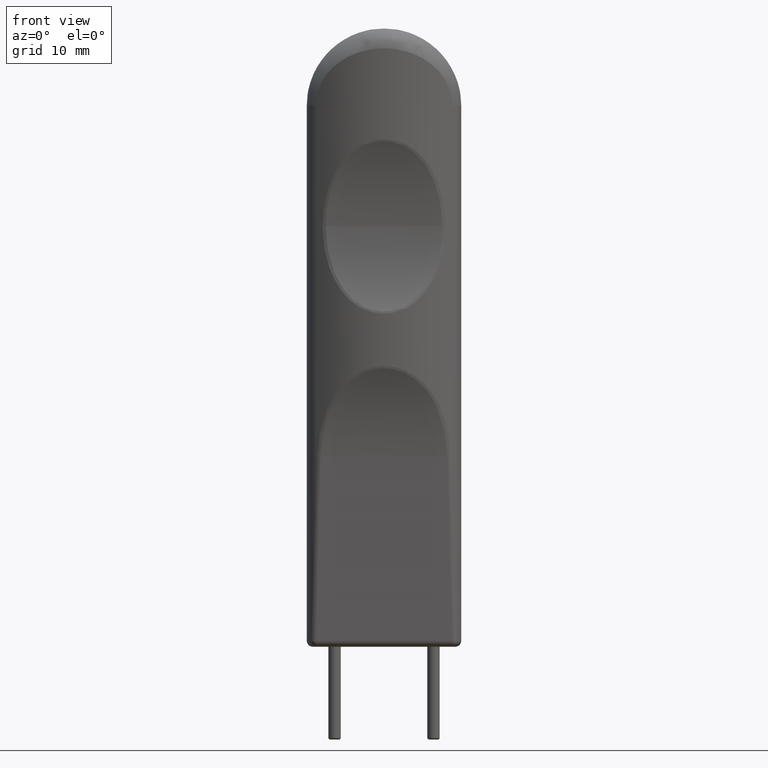
[diagram: clean part render]
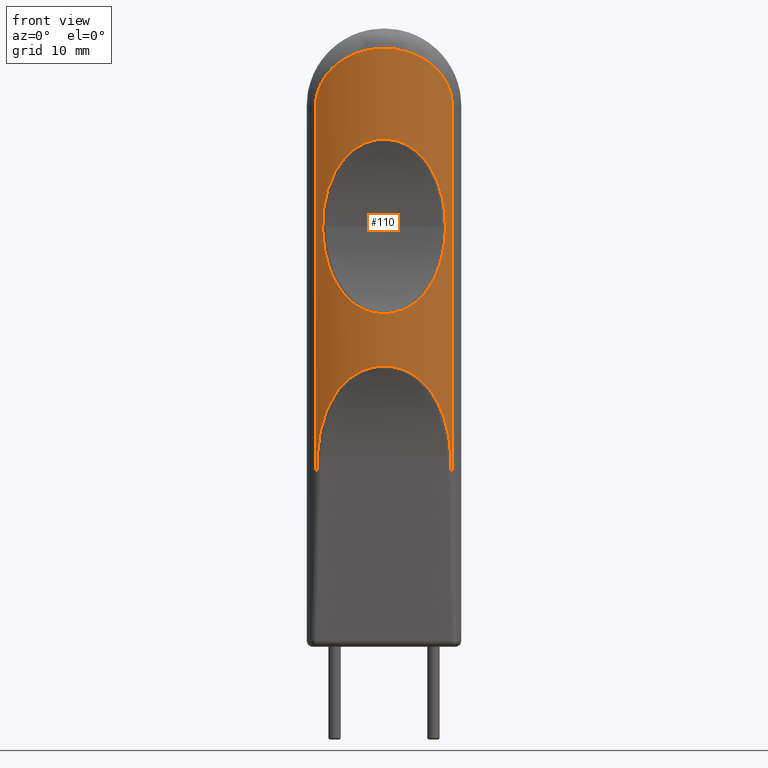
[diagram: same view with one face highlighted and labeled with its STEP entity id]
A machine part, front view. The second image highlights one B-rep face of the part: STEP entity #110.
In plain terms, the highlighted cylindrical surface (partial cylindrical patch) has radius 20 mm, axis along (0, 0, -1).
Its self-contained STEP definition (entity closure, byte-faithful):
#110=ADVANCED_FACE('NONE',(#253,#254),#255,.T.);
#253=FACE_OUTER_BOUND('',#742,.T.);
#254=FACE_BOUND('',#743,.T.);
#255=CYLINDRICAL_SURFACE('',#744,20.0);
#742=EDGE_LOOP('',(#2136,#2137,#2138,#2139,#2140,#2141));
#743=EDGE_LOOP('',(#2142,#2143));
#744=AXIS2_PLACEMENT_3D('',#2144,#2145,#2146);
#2136=ORIENTED_EDGE('',*,*,#2467,.T.);
#2137=ORIENTED_EDGE('',*,*,#2468,.T.);
#2138=ORIENTED_EDGE('',*,*,#2446,.T.);
#2139=ORIENTED_EDGE('',*,*,#2469,.T.);
#2140=ORIENTED_EDGE('',*,*,#2470,.F.);
#2141=ORIENTED_EDGE('',*,*,#2471,.T.);
#2142=ORIENTED_EDGE('',*,*,#2410,.T.);
#2143=ORIENTED_EDGE('',*,*,#2472,.T.);
#2144=CARTESIAN_POINT('',(0.0,13.9910685796332,-100.0));
#2145=DIRECTION('',(0.0,0.0,-1.0));
#2146=DIRECTION('',(1.0,0.0,0.0));
#2410=EDGE_CURVE('NONE',#2591,#2589,#2592,.T.);
#2446=EDGE_CURVE('NONE',#2650,#2648,#2651,.T.);
#2467=EDGE_CURVE('NONE',#2679,#2680,#2681,.T.);
#2468=EDGE_CURVE('NONE',#2680,#2650,#2682,.T.);
#2469=EDGE_CURVE('NONE',#2648,#2683,#2684,.T.);
#2470=EDGE_CURVE('NONE',#2685,#2683,#2686,.T.);
#2471=EDGE_CURVE('NONE',#2685,#2679,#2687,.T.);
#2472=EDGE_CURVE('NONE',#2589,#2591,#2688,.T.);
#2589=VERTEX_POINT('NONE',#3026);
#2591=VERTEX_POINT('NONE',#3028);
#2592=B_SPLINE_CURVE_WITH_KNOTS('',3,(#3029,#3030,#3031,#3032,#3033,#3034,#3035,#3036,#3037,#3038,#3039,#3040,#3041,#3042,#3043,#3044,#3045,#3046,#3047,#3048,#3049,#3050,#3051,#3052,#3053,#3054,#3055,#3056,#3057,#3058,#3059,#3060,#3061,#3062,#3063,#3064,#3065,#3066,#3067,#3068,#3069,#3070,#3071,#3072,#3073,#3074,#3075,#3076,#3077,#3078),.UNSPECIFIED.,.F.,.F.,(4,2,2,2,2,2,2,2,2,2,2,2,2,2,2,2,2,2,2,2,2,2,2,2,4),(0.0742095524781154,0.0754177046779872,0.0766258568778591,0.0778340090777309,0.0790421612776028,0.0796462373775387,0.0802503134774746,0.0814584656773465,0.0826666178772183,0.0838747700770901,0.085082922276962,0.0862910744768338,0.0887073788765776,0.0911236832763212,0.093539987676065,0.0959562920758087,0.0983725964755524,0.100788900875296,0.10320520527504,0.104413357474912,0.105621509674783,0.108037814074527,0.110454118474271,0.111662270674143,0.112870422874015),.UNSPECIFIED.);
#2648=VERTEX_POINT('NONE',#3245);
#2650=VERTEX_POINT('NONE',#3247);
#2651=LINE('',#3248,#3249);
#2679=VERTEX_POINT('NONE',#3465);
#2680=VERTEX_POINT('NONE',#3466);
#2681=B_SPLINE_CURVE_WITH_KNOTS('',3,(#3467,#3468,#3469,#3470,#3471,#3472,#3473,#3474,#3475,#3476,#3477,#3478,#3479,#3480,#3481,#3482,#3483,#3484,#3485,#3486,#3487,#3488,#3489,#3490,#3491,#3492,#3493,#3494,#3495,#3496,#3497,#3498,#3499,#3500,#3501,#3502,#3503,#3504,#3505,#3506,#3507,#3508,#3509,#3510,#3511,#3512,#3513,#3514),.UNSPECIFIED.,.F.,.F.,(4,2,2,2,2,2,2,2,2,2,2,2,2,2,2,2,2,2,2,2,2,2,2,4),(0.0,0.00253154938420707,0.00506309876841414,0.00632887346051767,0.0075946481526212,0.0101261975368283,0.0113919722289318,0.0126577469210353,0.0139235216131389,0.0151892963052424,0.0177208456894495,0.0202523950736566,0.0215181697657601,0.0227839444578636,0.0240497191499672,0.0253154938420707,0.0265812685341742,0.0278470432262778,0.0291128179183813,0.0303785926104848,0.0329101419946919,0.035441691378899,0.037973240763106,0.0405047901473131),.UNSPECIFIED.);
#2682=(B_SPLINE_CURVE(3,(#3516,#3517,#3518,#3519),.UNSPECIFIED.,.F.,.F.)B_SPLINE_CURVE_WITH_KNOTS((4,4),(0.569713571461901,0.58664660615694),.UNSPECIFIED.)RATIONAL_B_SPLINE_CURVE((1.0,0.999976106170732,0.999976106170732,1.0))BOUNDED_CURVE()REPRESENTATION_ITEM('')GEOMETRIC_REPRESENTATION_ITEM()CURVE());
#2683=VERTEX_POINT('NONE',#3526);
#2684=B_SPLINE_CURVE_WITH_KNOTS('',3,(#3527,#3528,#3529,#3530,#3531,#3532,#3533,#3534,#3535,#3536,#3537,#3538,#3539,#3540,#3541,#3542,#3543,#3544,#3545,#3546,#3547,#3548,#3549,#3550,#3551,#3552,#3553,#3554,#3555,#3556,#3557,#3558,#3559,#3560,#3561,#3562,#3563,#3564,#3565,#3566,#3567,#3568,#3569,#3570,#3571,#3572),.UNSPECIFIED.,.F.,.F.,(4,2,2,2,2,2,2,2,2,2,2,2,2,2,2,2,2,2,2,2,2,2,4),(3.49644694633735E-018,0.00204640767227597,0.00306961150841395,0.00409281534455194,0.0061392230168279,0.00818563068910386,0.00920883452524184,0.0102320383613798,0.0122784460336558,0.0143248537059317,0.0153480575420697,0.0163712613782077,0.0184176690504837,0.0194408728866216,0.0204640767227596,0.0225104843950356,0.0235336882311736,0.0245568920673115,0.0266032997395875,0.0286497074118635,0.0296729112480014,0.0306961150841394,0.0327425227564154),.UNSPECIFIED.);
#2685=VERTEX_POINT('NONE',#3573);
#2686=LINE('',#3574,#3575);
#2687=(B_SPLINE_CURVE(3,(#3577,#3578,#3579,#3580),.UNSPECIFIED.,.F.,.F.)B_SPLINE_CURVE_WITH_KNOTS((4,4),(5.69653870102264,5.71347173571769),.UNSPECIFIED.)RATIONAL_B_SPLINE_CURVE((1.0,0.999976106170732,0.999976106170732,1.0))BOUNDED_CURVE()REPRESENTATION_ITEM('')GEOMETRIC_REPRESENTATION_ITEM()CURVE());
#2688=B_SPLINE_CURVE_WITH_KNOTS('',3,(#3587,#3588,#3589,#3590,#3591,#3592,#3593,#3594,#3595,#3596,#3597,#3598,#3599,#3600,#3601,#3602,#3603,#3604,#3605,#3606,#3607,#3608,#3609,#3610,#3611,#3612,#3613,#3614,#3615,#3616,#3617,#3618,#3619,#3620,#3621,#3622,#3623,#3624,#3625,#3626,#3627,#3628,#3629,#3630,#3631,#3632,#3633,#3634,#3635,#3636,#3637,#3638),.UNSPECIFIED.,.F.,.F.,(4,2,2,2,2,2,2,2,2,2,2,2,2,2,2,2,2,2,2,2,2,2,2,2,2,4),(0.0355793620104813,0.0367865554625949,0.0379937489147084,0.039200942366822,0.0404081358189356,0.0416153292710491,0.0428225227231627,0.0440297161752763,0.0452369096273898,0.047651296531617,0.0488584899837305,0.0500656834358441,0.0524800703400712,0.0536872637921848,0.0548944572442983,0.0573088441485255,0.0585160376006391,0.0597232310527526,0.0621376179569798,0.0645520048612069,0.066966391765434,0.0693807786696611,0.0705879721217747,0.0717951655738883,0.0730023590260018,0.0742095524781154),.UNSPECIFIED.);
#3026=CARTESIAN_POINT('',(-3.00940072052525,-5.78122282281435,-18.4819445140793));
#3028=CARTESIAN_POINT('',(3.0206305165737,-5.77951035175733,-45.5133962950282));
#3029=CARTESIAN_POINT('',(3.0206305165737,-5.77951035175733,-45.5133962950282));
#3030=CARTESIAN_POINT('',(2.6514223651464,-5.83591949450622,-45.6669006682085));
#3031=CARTESIAN_POINT('',(2.27044046763357,-5.88357926424809,-45.7937271480114));
#3032=CARTESIAN_POINT('',(1.48266173185064,-5.95782214201518,-45.9895796548694));
#3033=CARTESIAN_POINT('',(1.07856860864782,-5.98394613076567,-46.0574268649568));
#3034=CARTESIAN_POINT('',(0.267799765585374,-6.01125144104851,-46.1282953214143));
#3035=CARTESIAN_POINT('',(-0.14444436885842,-6.01249009054403,-46.1314833005309));
#3036=CARTESIAN_POINT('',(-0.95215959105215,-5.99033817164648,-46.0740357660593));
#3037=CARTESIAN_POINT('',(-1.34981658532027,-5.96720320173607,-46.0140476282202));
#3038=CARTESIAN_POINT('',(-1.93739732746366,-5.91584343413196,-45.878915881664));
#3039=CARTESIAN_POINT('',(-2.13176842358601,-5.89594422647102,-45.8263191549241));
#3040=CARTESIAN_POINT('',(-2.51754260946271,-5.85079862513085,-45.7059994256494));
#3041=CARTESIAN_POINT('',(-2.70955660951788,-5.82544410089071,-45.6379792238919));
#3042=CARTESIAN_POINT('',(-3.27176024100349,-5.74314212856516,-45.4149443815874));
#3043=CARTESIAN_POINT('',(-3.63089903101817,-5.67973543122766,-45.2404089054285));
#3044=CARTESIAN_POINT('',(-4.32099852104112,-5.53975142333413,-44.8440690596471));
#3045=CARTESIAN_POINT('',(-4.65271627833116,-5.46295994382735,-44.6216275748313));
#3046=CARTESIAN_POINT('',(-5.28639941399934,-5.3004055940512,-44.1339749895054));
#3047=CARTESIAN_POINT('',(-5.58348286267159,-5.21597451800107,-43.8727423809297));
#3048=CARTESIAN_POINT('',(-6.1435258171929,-5.04423745850582,-43.3194495017022));
#3049=CARTESIAN_POINT('',(-6.40645445530205,-4.95692010922105,-43.0273639536328));
#3050=CARTESIAN_POINT('',(-6.90164599636287,-4.78221607121297,-42.4147411071729));
#3051=CARTESIAN_POINT('',(-7.13452637572549,-4.69457102292032,-42.0932082407724));
#3052=CARTESIAN_POINT('',(-7.78641092802237,-4.43690419844881,-41.0945105727102));
#3053=CARTESIAN_POINT('',(-8.1519605668197,-4.27539623736275,-40.3959887754235));
#3054=CARTESIAN_POINT('',(-8.77495862145704,-3.9844230460568,-38.9444943402188));
#3055=CARTESIAN_POINT('',(-9.03244204097969,-3.8546748933661,-38.1900156159223));
#3056=CARTESIAN_POINT('',(-9.45055466277697,-3.63682369067577,-36.6361884156785));
#3057=CARTESIAN_POINT('',(-9.6073952544605,-3.55072172615524,-35.8518571058929));
#3058=CARTESIAN_POINT('',(-9.83158734201531,-3.42605922732762,-34.2699549107825));
#3059=CARTESIAN_POINT('',(-9.8988247980423,-3.38748259778235,-33.4723719484805));
#3060=CARTESIAN_POINT('',(-9.94711656029954,-3.35988659707691,-31.8642196782019));
#3061=CARTESIAN_POINT('',(-9.92741417806143,-3.37129921039782,-31.0486256142584));
#3062=CARTESIAN_POINT('',(-9.79994669234528,-3.44356397646825,-29.4447331391734));
#3063=CARTESIAN_POINT('',(-9.69283504106702,-3.50405593623536,-28.6530246172482));
#3064=CARTESIAN_POINT('',(-9.38618023149828,-3.67047307507274,-27.0907983045216));
#3065=CARTESIAN_POINT('',(-9.18678181500359,-3.77642540982285,-26.320256809892));
#3066=CARTESIAN_POINT('',(-8.80528336522037,-3.96685962920106,-25.1824680604611));
#3067=CARTESIAN_POINT('',(-8.66414352123394,-4.03562130952508,-24.8063749325485));
#3068=CARTESIAN_POINT('',(-8.35629274034896,-4.18037338169758,-24.073394763478));
#3069=CARTESIAN_POINT('',(-8.18909742734606,-4.25661566916622,-23.71492793552));
#3070=CARTESIAN_POINT('',(-7.64413793088743,-4.49471903592062,-22.6650078878705));
#3071=CARTESIAN_POINT('',(-7.22265071774676,-4.66657098269612,-21.9971218539684));
#3072=CARTESIAN_POINT('',(-6.23643849256167,-5.01895594315107,-20.7496534282494));
#3073=CARTESIAN_POINT('',(-5.68566044638001,-5.19449532199707,-20.1872130927118));
#3074=CARTESIAN_POINT('',(-4.75355488922348,-5.43846731675162,-19.4504801593069));
#3075=CARTESIAN_POINT('',(-4.42228941632047,-5.51704892017024,-19.2214016644778));
#3076=CARTESIAN_POINT('',(-3.73478721019159,-5.66025851454613,-18.8138494622802));
#3077=CARTESIAN_POINT('',(-3.37870191216404,-5.7250140987172,-18.634844348692));
#3078=CARTESIAN_POINT('',(-3.00940072052525,-5.78122282281435,-18.4819445140793));
#3245=CARTESIAN_POINT('',(11.0714285714286,-2.66496544373966,-12.5));
#3247=CARTESIAN_POINT('',(11.0714285714286,-2.66496544373966,-78.097604201815));
#3248=CARTESIAN_POINT('',(11.0714285714286,-2.66496544373966,-100.0));
#3249=VECTOR('',#4134,1000.0);
#3465=CARTESIAN_POINT('',(-10.7878176427133,-2.85004155323998,-69.1908077830603));
#3466=CARTESIAN_POINT('',(10.7878176427134,-2.85004155323992,-69.1908077830603));
#3467=CARTESIAN_POINT('',(-10.7878176427133,-2.85004155323998,-69.1908077830603));
#3468=CARTESIAN_POINT('',(-10.7601529190188,-2.86776259371754,-68.3379818819305));
#3469=CARTESIAN_POINT('',(-10.6893137459573,-2.91327810495902,-67.4949563289386));
#3470=CARTESIAN_POINT('',(-10.4592580269641,-3.05657896241154,-65.828511463214));
#3471=CARTESIAN_POINT('',(-10.300108533416,-3.15438684614668,-65.0050833925454));
#3472=CARTESIAN_POINT('',(-9.98585864424489,-3.33802102503294,-63.7859344785368));
#3473=CARTESIAN_POINT('',(-9.86803784615202,-3.40560680349895,-63.3810502682111));
#3474=CARTESIAN_POINT('',(-9.606078157588,-3.55161501636988,-62.5826781329093));
#3475=CARTESIAN_POINT('',(-9.46256472420144,-3.62969477177839,-62.1908302273089));
#3476=CARTESIAN_POINT('',(-8.99176948453152,-3.87716609874661,-61.0381254146058));
#3477=CARTESIAN_POINT('',(-8.62479902730671,-4.05990699043876,-60.2998582300283));
#3478=CARTESIAN_POINT('',(-7.9758910534793,-4.35126990885348,-59.2447239136858));
#3479=CARTESIAN_POINT('',(-7.74192711948415,-4.45169440916977,-58.9003197980918));
#3480=CARTESIAN_POINT('',(-7.24109622942776,-4.65402373927828,-58.2382225476885));
#3481=CARTESIAN_POINT('',(-6.97569491684366,-4.75537308397643,-57.9221677992938));
#3482=CARTESIAN_POINT('',(-6.41220429644205,-4.95551503538002,-57.3217671697702));
#3483=CARTESIAN_POINT('',(-6.11413372991136,-5.05431604987067,-57.0374054463262));
#3484=CARTESIAN_POINT('',(-5.48129415025802,-5.24599776093259,-56.503254175885));
#3485=CARTESIAN_POINT('',(-5.14392292609231,-5.33949628742161,-56.2518837011513));
#3486=CARTESIAN_POINT('',(-4.09102984177232,-5.59939337075732,-55.570903003941));
#3487=CARTESIAN_POINT('',(-3.33692271374366,-5.74575774905101,-55.2117716912473));
#3488=CARTESIAN_POINT('',(-1.70400028715649,-5.95319750732802,-54.7119317454602));
#3489=CARTESIAN_POINT('',(-0.869038828308007,-6.00822079373482,-54.5848316356917));
#3490=CARTESIAN_POINT('',(0.409752677882061,-6.00927651049393,-54.5823601510578));
#3491=CARTESIAN_POINT('',(0.841525193460625,-5.9956483182387,-54.6141531231645));
#3492=CARTESIAN_POINT('',(1.6813176448116,-5.94257604407152,-54.7392807495542));
#3493=CARTESIAN_POINT('',(2.09356734951945,-5.90323985001975,-54.8323730381639));
#3494=CARTESIAN_POINT('',(2.90334088187959,-5.80128206056972,-55.0779206279588));
#3495=CARTESIAN_POINT('',(3.30275721427344,-5.73814686851298,-55.2316966908717));
#3496=CARTESIAN_POINT('',(4.06447639558379,-5.59541091632388,-55.5877997016154));
#3497=CARTESIAN_POINT('',(4.4295932458696,-5.51557551053026,-55.7906741298398));
#3498=CARTESIAN_POINT('',(5.13104029784907,-5.34291407904351,-56.2427817217557));
#3499=CARTESIAN_POINT('',(5.46927145359467,-5.24944581559629,-56.4938488194055));
#3500=CARTESIAN_POINT('',(6.10515511193416,-5.05722282630037,-57.0291086756842));
#3501=CARTESIAN_POINT('',(6.40384477127867,-4.95834219580838,-57.3135251575799));
#3502=CARTESIAN_POINT('',(6.96742981632253,-4.75844656998265,-57.9127155739338));
#3503=CARTESIAN_POINT('',(7.23230217113398,-4.65742220734907,-58.2275076106288));
#3504=CARTESIAN_POINT('',(7.73138471570099,-4.45610176447586,-58.8855066168521));
#3505=CARTESIAN_POINT('',(7.96662339562133,-4.35531797252942,-59.2305295776325));
#3506=CARTESIAN_POINT('',(8.62007622220846,-4.06224793892945,-60.2904747706543));
#3507=CARTESIAN_POINT('',(8.98766461216454,-3.87922681091786,-61.0295494164014));
#3508=CARTESIAN_POINT('',(9.61508023980182,-3.54962138708356,-62.562797820301));
#3509=CARTESIAN_POINT('',(9.87521666951243,-3.40260907984779,-63.35938313503));
#3510=CARTESIAN_POINT('',(10.2979907276606,-3.15568953275527,-64.9942278117292));
#3511=CARTESIAN_POINT('',(10.4580874710813,-3.05730202236766,-65.8212760905173));
#3512=CARTESIAN_POINT('',(10.6892018658525,-2.9133538360251,-67.4929090614589));
#3513=CARTESIAN_POINT('',(10.760137410733,-2.86777252777519,-68.3375038049389));
#3514=CARTESIAN_POINT('',(10.7878176427134,-2.85004155323992,-69.1908077830603));
#3516=CARTESIAN_POINT('',(10.7878176427134,-2.85004155323992,-69.1908077830603));
#3517=CARTESIAN_POINT('',(10.8828758124371,-2.78915066229873,-72.1211847551834));
#3518=CARTESIAN_POINT('',(10.9774150475798,-2.72745715170444,-75.0901878356209));
#3519=CARTESIAN_POINT('',(11.0714285714286,-2.66496544373966,-78.097604201815));
#3526=CARTESIAN_POINT('',(-11.0714285714286,-2.66496544373966,-12.5));
#3527=CARTESIAN_POINT('',(11.0714285714286,-2.66496544373966,-12.5));
#3528=CARTESIAN_POINT('',(11.0714285714286,-2.66496544373967,-11.8051826068772));
#3529=CARTESIAN_POINT('',(10.9800309586937,-2.72663318355155,-11.1317201775837));
#3530=CARTESIAN_POINT('',(10.7194187735874,-2.89397566610766,-10.1494912345771));
#3531=CARTESIAN_POINT('',(10.6108359074016,-2.96274668705124,-9.82524777048519));
#3532=CARTESIAN_POINT('',(10.3600066610064,-3.11717366597958,-9.20366468646456));
#3533=CARTESIAN_POINT('',(10.2173801899931,-3.20308190051848,-8.90407788713572));
#3534=CARTESIAN_POINT('',(9.74159628506634,-3.4799352994414,-8.03500851067933));
#3535=CARTESIAN_POINT('',(9.357273389845,-3.69138467995878,-7.49231851499856));
#3536=CARTESIAN_POINT('',(8.50330111213605,-4.11753679919988,-6.51343234098071));
#3537=CARTESIAN_POINT('',(8.03086657843206,-4.33422419090656,-6.07099898398116));
#3538=CARTESIAN_POINT('',(7.25542021318323,-4.6485846041515,-5.46908089958675));
#3539=CARTESIAN_POINT('',(6.98482979757677,-4.75189359898118,-5.27844488193033));
#3540=CARTESIAN_POINT('',(6.43075075898877,-4.94915114469552,-4.92399913264221));
#3541=CARTESIAN_POINT('',(6.14624004891271,-5.04355623608555,-4.75929343145252));
#3542=CARTESIAN_POINT('',(5.27045441310733,-5.31165518504565,-4.30097871095059));
#3543=CARTESIAN_POINT('',(4.65712351444689,-5.47028779897741,-4.04280808027428));
#3544=CARTESIAN_POINT('',(3.36753930047214,-5.73436856593794,-3.62160027997032));
#3545=CARTESIAN_POINT('',(2.70994053444678,-5.83589476737445,-3.46478411684757));
#3546=CARTESIAN_POINT('',(1.70646001753712,-5.93883502084873,-3.3066865269553));
#3547=CARTESIAN_POINT('',(1.36900445886369,-5.96493462604659,-3.26690217172474));
#3548=CARTESIAN_POINT('',(0.688035299807705,-6.0000005408443,-3.21353208575617));
#3549=CARTESIAN_POINT('',(0.343193365098505,-6.00896186324154,-3.19995380539221));
#3550=CARTESIAN_POINT('',(-0.691695328191619,-6.00887029977382,-3.20009274557156));
#3551=CARTESIAN_POINT('',(-1.37146809206934,-5.97321979661529,-3.25387697912059));
#3552=CARTESIAN_POINT('',(-2.37658816321067,-5.87008099628209,-3.41228063903126));
#3553=CARTESIAN_POINT('',(-2.70919185118998,-5.82740394972493,-3.47812270105786));
#3554=CARTESIAN_POINT('',(-3.36948633458233,-5.72588188752931,-3.63646849119753));
#3555=CARTESIAN_POINT('',(-3.69845107295811,-5.66671546404378,-3.72948810798035));
#3556=CARTESIAN_POINT('',(-4.65982225966382,-5.46950982636409,-4.04408673663836));
#3557=CARTESIAN_POINT('',(-5.27178957756087,-5.31130625700731,-4.30154766773417));
#3558=CARTESIAN_POINT('',(-6.14826061550348,-5.04290765563912,-4.76041600966703));
#3559=CARTESIAN_POINT('',(-6.43346074346573,-4.94824908364784,-4.92557462447238));
#3560=CARTESIAN_POINT('',(-6.98971281832406,-4.75009161406185,-5.28172882704073));
#3561=CARTESIAN_POINT('',(-7.25892251984904,-4.64720203811576,-5.47168588217278));
#3562=CARTESIAN_POINT('',(-8.03080550725063,-4.33417395581984,-6.07118028434574));
#3563=CARTESIAN_POINT('',(-8.50223346382707,-4.11803509615446,-6.51238998289459));
#3564=CARTESIAN_POINT('',(-9.35602930906084,-3.69203989658901,-7.49071148896335));
#3565=CARTESIAN_POINT('',(-9.74076924807053,-3.48038933672831,-8.03386306462608));
#3566=CARTESIAN_POINT('',(-10.2161335483038,-3.20382083961166,-8.90161910806641));
#3567=CARTESIAN_POINT('',(-10.3586474693313,-3.1179959106947,-9.2007082068486));
#3568=CARTESIAN_POINT('',(-10.6093414524098,-2.96368117004645,-9.82113725586682));
#3569=CARTESIAN_POINT('',(-10.7181351517869,-2.89479336239885,-10.1452258024753));
#3570=CARTESIAN_POINT('',(-10.9799349847121,-2.72670777850853,-11.1302222605375));
#3571=CARTESIAN_POINT('',(-11.0714285714286,-2.66496544373967,-11.8048802079857));
#3572=CARTESIAN_POINT('',(-11.0714285714286,-2.66496544373966,-12.5));
#3573=CARTESIAN_POINT('',(-11.0714285714286,-2.66496544373966,-78.0976042018179));
#3574=CARTESIAN_POINT('',(-11.0714285714286,-2.66496544373966,-100.0));
#3575=VECTOR('',#4156,1000.0);
#3577=CARTESIAN_POINT('',(-11.0714285714286,-2.66496544373966,-78.0976042018179));
#3578=CARTESIAN_POINT('',(-10.9774150475798,-2.72745715170446,-75.0901878356225));
#3579=CARTESIAN_POINT('',(-10.882875812437,-2.78915066229878,-72.1211847551839));
#3580=CARTESIAN_POINT('',(-10.7878176427133,-2.85004155323998,-69.1908077830603));
#3587=CARTESIAN_POINT('',(-3.00940072052525,-5.78122282281435,-18.4819445140793));
#3588=CARTESIAN_POINT('',(-2.64039259352652,-5.83738694161406,-18.3291660154818));
#3589=CARTESIAN_POINT('',(-2.25584842877702,-5.88524411276767,-18.20185260459));
#3590=CARTESIAN_POINT('',(-1.46768380874976,-5.95893298972126,-18.0075194032781));
#3591=CARTESIAN_POINT('',(-1.07048390311369,-5.98427830467081,-17.9417102775416));
#3592=CARTESIAN_POINT('',(-0.269887112603781,-6.01112079757123,-17.8720444876425));
#3593=CARTESIAN_POINT('',(0.133508536892126,-6.01262225258035,-17.8681752910718));
#3594=CARTESIAN_POINT('',(0.946775401068953,-5.9906502598495,-17.9251535755613));
#3595=CARTESIAN_POINT('',(1.34953491605789,-5.96722767559584,-17.9858879914948));
#3596=CARTESIAN_POINT('',(2.13352446157799,-5.89870032985887,-18.166189014463));
#3597=CARTESIAN_POINT('',(2.51711714697392,-5.8535302715689,-18.2859299479221));
#3598=CARTESIAN_POINT('',(3.2680380354495,-5.74377141707255,-18.5833290238771));
#3599=CARTESIAN_POINT('',(3.63066906632097,-5.67978410946489,-18.7594521949703));
#3600=CARTESIAN_POINT('',(4.32144990512807,-5.53965783038049,-19.1561970083379));
#3601=CARTESIAN_POINT('',(4.65156160770237,-5.46322212930731,-19.3776184075865));
#3602=CARTESIAN_POINT('',(5.28365347348045,-5.30114379610012,-19.8637781300151));
#3603=CARTESIAN_POINT('',(5.58366239227389,-5.21592879575989,-20.1273900016686));
#3604=CARTESIAN_POINT('',(6.42493461367287,-4.95792481756426,-20.9586576426319));
#3605=CARTESIAN_POINT('',(6.91560698664169,-4.78103521751108,-21.5719368129902));
#3606=CARTESIAN_POINT('',(7.56621858284195,-4.52397156609084,-22.5678869224021));
#3607=CARTESIAN_POINT('',(7.76802233594288,-4.43984408293642,-22.9120164694203));
#3608=CARTESIAN_POINT('',(8.13829053403009,-4.27937037980872,-23.6108533566037));
#3609=CARTESIAN_POINT('',(8.30784912261244,-4.20258865720857,-23.9671983243107));
#3610=CARTESIAN_POINT('',(8.77486913216845,-3.98446352643886,-25.0553180829916));
#3611=CARTESIAN_POINT('',(9.03104488684042,-3.85537413848165,-25.8060349769341));
#3612=CARTESIAN_POINT('',(9.34385620504243,-3.69243145795155,-26.9666764192606));
#3613=CARTESIAN_POINT('',(9.43618995592865,-3.64317466471303,-27.3601677324063));
#3614=CARTESIAN_POINT('',(9.59563657278346,-3.55692203035402,-28.1470663687141));
#3615=CARTESIAN_POINT('',(9.663158255961,-3.51971377729487,-28.5417944653148));
#3616=CARTESIAN_POINT('',(9.83158020846047,-3.42606481052067,-29.7296214554957));
#3617=CARTESIAN_POINT('',(9.89864177345462,-3.38758696345209,-30.5263372733289));
#3618=CARTESIAN_POINT('',(9.93495511883439,-3.36683628091502,-31.7284109373695));
#3619=CARTESIAN_POINT('',(9.9362673711155,-3.36608309898404,-32.1302754772254));
#3620=CARTESIAN_POINT('',(9.91695926732357,-3.37712195810173,-32.9363899121482));
#3621=CARTESIAN_POINT('',(9.89620387507783,-3.38899154466055,-33.342093105641));
#3622=CARTESIAN_POINT('',(9.80063468115863,-3.4431771479892,-34.5505341790848));
#3623=CARTESIAN_POINT('',(9.69331839463214,-3.50378462530317,-35.3436508539335));
#3624=CARTESIAN_POINT('',(9.38729041535002,-3.66987954949803,-36.9044036108638));
#3625=CARTESIAN_POINT('',(9.18868864771983,-3.77539780488963,-37.6720605621164));
#3626=CARTESIAN_POINT('',(8.68475108792287,-4.02710073353337,-39.1789720059886));
#3627=CARTESIAN_POINT('',(8.37630214359366,-4.17469752645686,-39.9229868294054));
#3628=CARTESIAN_POINT('',(7.64907039043367,-4.49268693660681,-41.3268852242998));
#3629=CARTESIAN_POINT('',(7.22963467903405,-4.66377587591836,-41.9921721872518));
#3630=CARTESIAN_POINT('',(6.49465994908179,-4.92683569010744,-42.9246273033412));
#3631=CARTESIAN_POINT('',(6.23103090386466,-5.01574023212019,-43.2248891397315));
#3632=CARTESIAN_POINT('',(5.67591868545614,-5.18882908452425,-43.7872773762572));
#3633=CARTESIAN_POINT('',(5.38320156816797,-5.27349744852926,-44.0511864374603));
#3634=CARTESIAN_POINT('',(4.7642488854812,-5.43582761955797,-44.541710272103));
#3635=CARTESIAN_POINT('',(4.43804492223971,-5.51350318962518,-44.7683579043195));
#3636=CARTESIAN_POINT('',(3.74711273355029,-5.65794434203882,-45.1797086414846));
#3637=CARTESIAN_POINT('',(3.38954567719441,-5.72314597335118,-45.360013737604));
#3638=CARTESIAN_POINT('',(3.0206305165737,-5.77951035175733,-45.5133962950282));
#4134=DIRECTION('',(0.0,0.0,1.0));
#4156=DIRECTION('',(0.0,0.0,1.0));